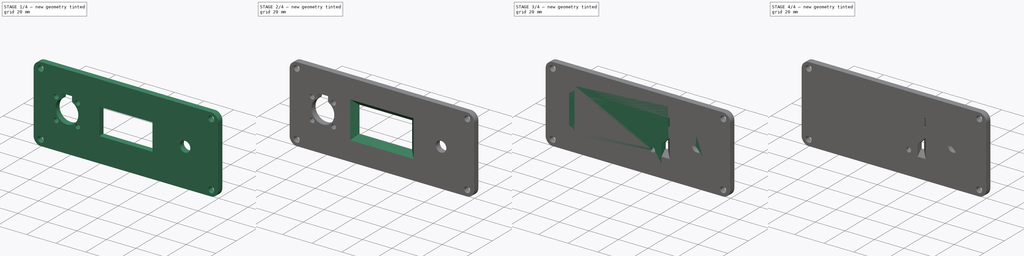
[diagram: build sequence overview — one tinted view per stage of 4, left to right]
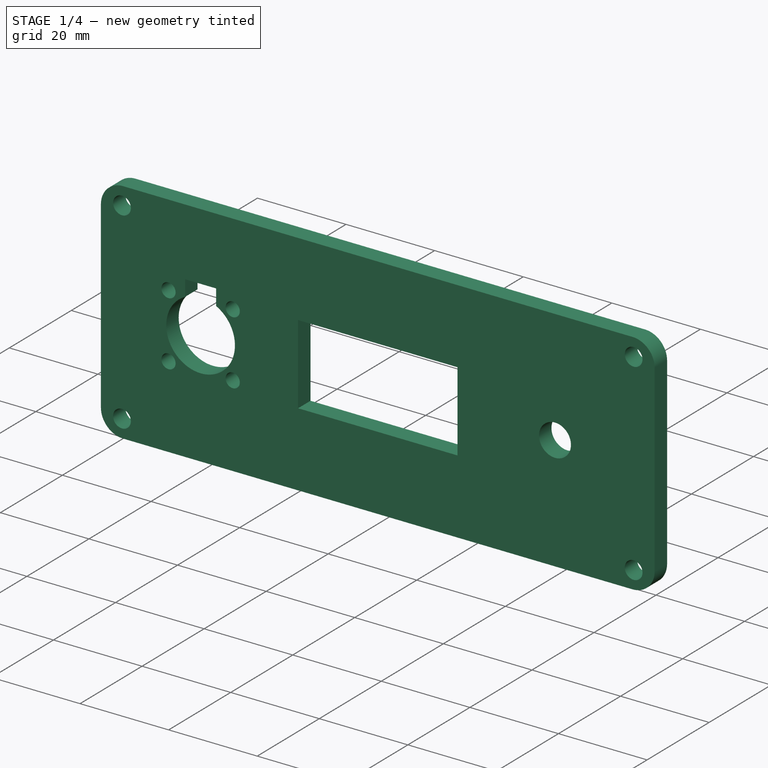
[diagram: stage 1 of 4 — iso view after this stage's code; geometry added in this stage tinted green]
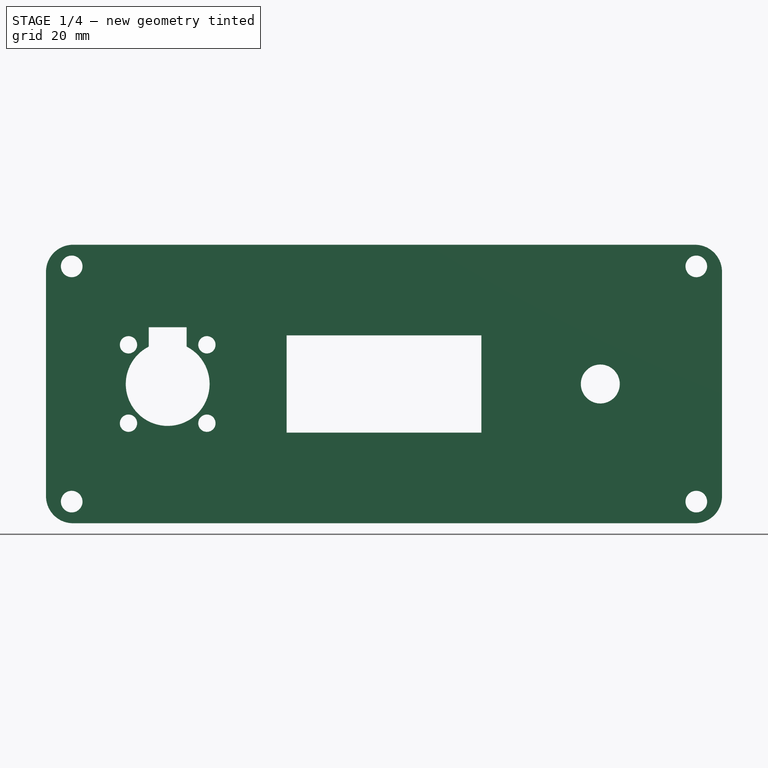
[diagram: stage 1 of 4 — front view after this stage's code; geometry added in this stage tinted green]
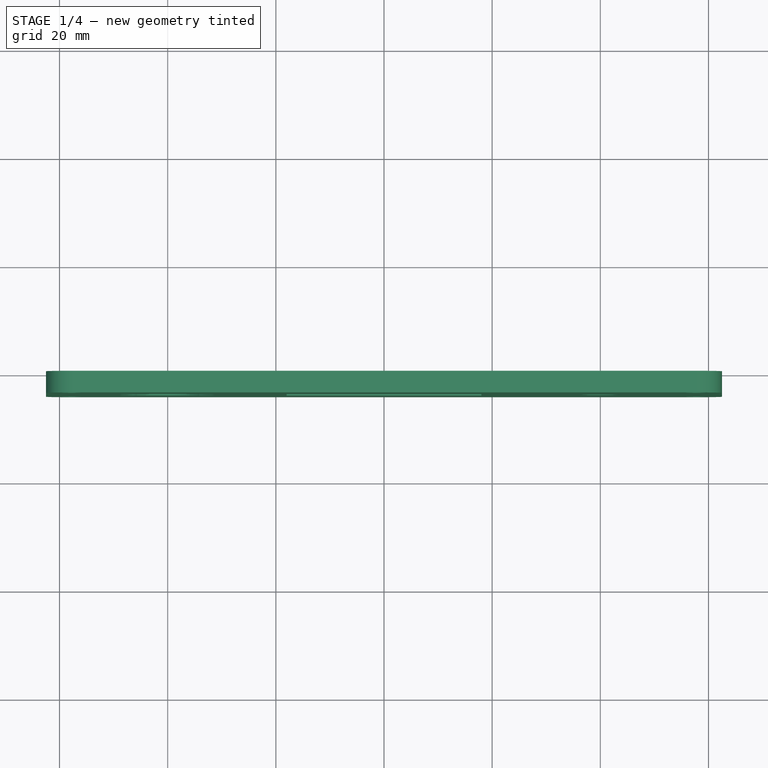
[diagram: stage 1 of 4 — top view after this stage's code; geometry added in this stage tinted green]
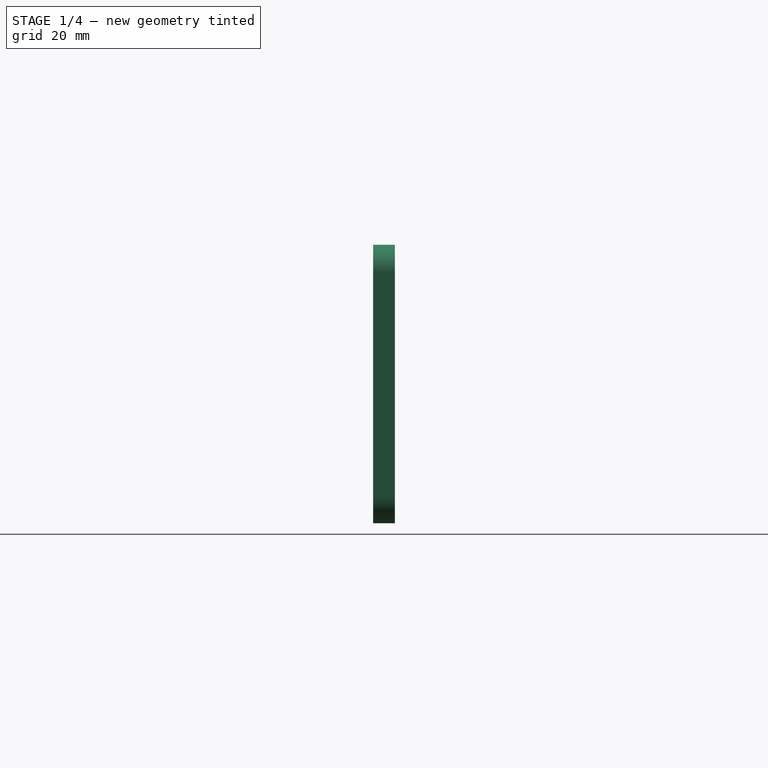
[diagram: stage 1 of 4 — right view after this stage's code; geometry added in this stage tinted green]
FCSTD DOCUMENT  (FreeCAD 0.20R28730 (Git))
Label: Panels
License: All rights reserved
LicenseURL: http://en.wikipedia.org/wiki/All_rights_reserved
objects: PartDesign::CoordinateSystem×19, Sketcher::SketchObject×7, PartDesign::Pocket×3, PartDesign::Pad×2, PartDesign::Hole×2, Part::Part2DObjectPython×2, PartDesign::Body×2, PartDesign::Chamfer×1, PartDesign::Fillet×1
note: 48 computed .brp shape members not serialized (recipe doc carries the construction recipe); baked Part::Feature solids carry a one-line shape summary decoded from their .brp

FEATURE [Sketcher::SketchObject] Sketch001  label="Master_Sketch_Front"
  FullyConstrained = true
  MapMode = 5
  Placement = pos=(0,0,0) rot=(1,0,0;1.5708rad)
  Support = -> [XZ_Plane]
  sketch-geometry (38):
    g0: ArcOfCircle CenterX=-57.5 CenterY=-20.75 CenterZ=0 NormalX=0 NormalY=0 NormalZ=1 AngleXU=0 Radius=5 StartAngle=3.14159 EndAngle=4.71239
    g1: LineSegment StartX=-62.5 StartY=-20.75 StartZ=0 EndX=-62.5 EndY=20.75 EndZ=0
    g2: ArcOfCircle CenterX=-57.5 CenterY=20.75 CenterZ=0 NormalX=0 NormalY=0 NormalZ=1 AngleXU=0 Radius=5 StartAngle=1.5708 EndAngle=3.14159
    g3: LineSegment StartX=-57.5 StartY=25.75 StartZ=0 EndX=57.5 EndY=25.75 EndZ=0
    g4: ArcOfCircle CenterX=57.5 CenterY=20.75 CenterZ=0 NormalX=0 NormalY=0 NormalZ=1 AngleXU=0 Radius=5 StartAngle=3e-16 EndAngle=1.5708
    g5: LineSegment StartX=62.5 StartY=20.75 StartZ=0 EndX=62.5 EndY=-20.75 EndZ=0
    g6: ArcOfCircle CenterX=57.5 CenterY=-20.75 CenterZ=0 NormalX=0 NormalY=0 NormalZ=1 AngleXU=0 Radius=5 StartAngle=4.71239 EndAngle=6.28319
    g7: LineSegment StartX=57.5 StartY=-25.75 StartZ=0 EndX=-57.5 EndY=-25.75 EndZ=0
    g8: GeomPoint X=-62.5 Y=-25.75 Z=0
    g9: GeomPoint X=62.5 Y=25.75 Z=0
    g10: LineSegment StartX=-18 StartY=-9 StartZ=0 EndX=-18 EndY=9 EndZ=0
    g11: LineSegment StartX=-18 StartY=9 StartZ=0 EndX=18 EndY=9 EndZ=0
    g12: LineSegment StartX=18 StartY=9 StartZ=0 EndX=18 EndY=-9 EndZ=0
    g13: LineSegment StartX=18 StartY=-9 StartZ=0 EndX=-18 EndY=-9 EndZ=0
    g14: GeomPoint X=0 Y=0 Z=0
    g15: Circle CenterX=40 CenterY=0 CenterZ=0 NormalX=0 NormalY=0 NormalZ=1 AngleXU=0 Radius=3.6
    g16: ArcOfCircle CenterX=-40 CenterY=0 CenterZ=0 NormalX=0 NormalY=0 NormalZ=1 AngleXU=0 Radius=7.75 StartAngle=2.03937 EndAngle=7.38541
    g17: LineSegment StartX=-43.5 StartY=6.91466 StartZ=0 EndX=-43.5 EndY=10.5 EndZ=0
    g18: LineSegment StartX=-43.5 StartY=10.5 StartZ=0 EndX=-36.5 EndY=10.5 EndZ=0
    g19: LineSegment StartX=-36.5 StartY=10.5 StartZ=0 EndX=-36.5 EndY=6.91466 EndZ=0
    g20: LineSegment StartX=-57.75 StartY=-21.75 StartZ=0 EndX=-57.75 EndY=21.75 EndZ=0
    g21: LineSegment StartX=-57.75 StartY=21.75 StartZ=0 EndX=57.75 EndY=21.75 EndZ=0
    g22: LineSegment StartX=57.75 StartY=21.75 StartZ=0 EndX=57.75 EndY=-21.75 EndZ=0
    g23: LineSegment StartX=57.75 StartY=-21.75 StartZ=0 EndX=-57.75 EndY=-21.75 EndZ=0
    g24: GeomPoint X=-6e-16 Y=-2.7e-15 Z=0
    g25: Circle CenterX=-57.75 CenterY=21.75 CenterZ=0 NormalX=0 NormalY=0 NormalZ=1 AngleXU=0 Radius=2
    g26: Circle CenterX=57.75 CenterY=21.75 CenterZ=0 NormalX=0 NormalY=0 NormalZ=1 AngleXU=0 Radius=2
    g27: Circle CenterX=57.75 CenterY=-21.75 CenterZ=0 NormalX=0 NormalY=0 NormalZ=1 AngleXU=0 Radius=2
    g28: Circle CenterX=-57.75 CenterY=-21.75 CenterZ=0 NormalX=0 NormalY=0 NormalZ=1 AngleXU=0 Radius=2
    g29: LineSegment StartX=-47.25 StartY=-7.25 StartZ=0 EndX=-47.25 EndY=7.25 EndZ=0
    g30: LineSegment StartX=-47.25 StartY=7.25 StartZ=0 EndX=-32.75 EndY=7.25 EndZ=0
    g31: LineSegment StartX=-32.75 StartY=7.25 StartZ=0 EndX=-32.75 EndY=-7.25 EndZ=0
    g32: LineSegment StartX=-32.75 StartY=-7.25 StartZ=0 EndX=-47.25 EndY=-7.25 EndZ=0
    g33: GeomPoint X=-40 Y=0 Z=0
    g34: Circle CenterX=-47.25 CenterY=7.25 CenterZ=0 NormalX=0 NormalY=0 NormalZ=1 AngleXU=0 Radius=1.25
    g35: Circle CenterX=-32.75 CenterY=7.25 CenterZ=0 NormalX=0 NormalY=0 NormalZ=1 AngleXU=0 Radius=1.25
    g36: Circle CenterX=-47.25 CenterY=-7.25 CenterZ=0 NormalX=0 NormalY=0 NormalZ=1 AngleXU=0 Radius=1.25
    g37: Circle CenterX=-32.75 CenterY=-7.25 CenterZ=0 NormalX=0 NormalY=0 NormalZ=1 AngleXU=0 Radius=1.25
  constraints (90):
    c: Tangent(g0,g1) = 1.5708
    c: Tangent(g1,g2) = 1.5708
    c: Tangent(g2,g3) = 1.5708
    c: Tangent(g3,g4) = 1.5708
    c: Tangent(g4,g5) = 1.5708
    c: Tangent(g5,g6) = 1.5708
    c: Tangent(g6,g7) = 1.5708
    c: Tangent(g7,g0) = 1.5708
    c: Horizontal(g3)
    c: Horizontal(g7)
    c: Vertical(g1)
    c: Vertical(g5)
    c: Equal(g0,g2)
    c: Equal(g2,g4)
    c: Equal(g4,g6)
    c: PointOnObject(g8,g1)
    c: PointOnObject(g8,g7)
    c: PointOnObject(g9,g3)
    c: PointOnObject(g9,g5)
    c: Symmetric(g0,g4,g-1)
    c: Distance(g0,g5) = 125
    c: Distance(g0,g2) = 51.5
    c: Radius(g2) = 5
    c: Coincident(g10,g11)
    c: Coincident(g11,g12)
    c: Coincident(g12,g13)
    c: Coincident(g13,g10)
    c: Horizontal(g11)
    c: Horizontal(g13)
    c: Vertical(g10)
    c: Vertical(g12)
    c: Symmetric(g11,g10,g14)
    c: Coincident(g14,g-1)
    c: Distance(g11) = 36
    c: Distance(g10) = 18
    c: PointOnObject(g15,g-1)
    c: Coincident(g17,g18)
    c: Coincident(g18,g19)
    c: Coincident(g19,g16)
    c: Horizontal(g18)
    c: Vertical(g19)
    c: Vertical(g17)
    c: Horizontal(g17,g16)
    c: Coincident(g17,g16)
    c: Coincident(g20,g21)
    c: Coincident(g21,g22)
    c: Coincident(g22,g23)
    c: Coincident(g23,g20)
    c: Horizontal(g21)
    c: Horizontal(g23)
    c: Vertical(g20)
    c: Vertical(g22)
    c: Symmetric(g21,g20,g24)
    c: Coincident(g24,g-1)
    c: Coincident(g25,g20)
    c: Coincident(g26,g21)
    c: Coincident(g27,g22)
    c: Coincident(g28,g20)
    c: Equal(g28,g25)
    c: Equal(g25,g26)
    c: Equal(g26,g27)
    c: Diameter(g25) = 4
    c: Distance(g21) = 115.5
    c: Distance(g20) = 43.5
    c: Radius(g16) = 7.75
    c: DistanceY(g16,g17) = 10.5
    c: DistanceX(g18,g18) = 7
    c: Symmetric(g16,g15,g-2)
    c: Distance(g16,g15) = 80
    c: Diameter(g15) = 7.2
    c: Coincident(g29,g30)
    c: Coincident(g30,g31)
    c: Coincident(g31,g32)
    c: Coincident(g32,g29)
    c: Horizontal(g30)
    c: Horizontal(g32)
    c: Vertical(g29)
    c: Vertical(g31)
    c: Symmetric(g30,g29,g33)
    c: Coincident(g33,g16)
    c: Equal(g30,g31)
    c: Distance(g30) = 14.5
    c: Coincident(g34,g29)
    c: Coincident(g35,g30)
    c: Coincident(g36,g29)
    c: Coincident(g37,g31)
    c: Equal(g37,g36)
    c: Equal(g36,g35)
    c: Equal(g35,g34)
    c: Diameter(g34) = 2.5
FEATURE [Sketcher::SketchObject] Sketch
  FullyConstrained = true
  MapMode = 5
  Placement = pos=(0,0,0) rot=(1,0,0;1.5708rad)
  Support = -> [XZ_Plane]
  expr: Constraints[20] = Sketch001.Constraints[20]
  expr: Constraints[21] = Sketch001.Constraints[21]
  expr: Constraints[22] = Sketch001.Constraints[22]
  expr: Constraints[33] = Sketch001.Constraints[33]
  expr: Constraints[34] = Sketch001.Constraints[34]
  expr: Constraints[61] = Sketch001.Constraints[61]
  expr: Constraints[62] = Sketch001.Constraints[62]
  expr: Constraints[63] = Sketch001.Constraints[63]
  expr: Constraints[64] = Sketch001.Constraints[64]
  expr: Constraints[65] = Sketch001.Constraints[65]
  expr: Constraints[66] = Sketch001.Constraints[66]
  expr: Constraints[68] = Sketch001.Constraints[68]
  expr: Constraints[69] = Sketch001.Constraints[69]
  expr: Constraints[81] = Sketch001.Constraints[81]
  expr: Constraints[89] = Sketch001.Constraints[89]
  sketch-geometry (38):
    g0: ArcOfCircle CenterX=-57.5 CenterY=-20.75 CenterZ=0 NormalX=0 NormalY=0 NormalZ=1 AngleXU=0 Radius=5 StartAngle=3.14159 EndAngle=4.71239
    g1: LineSegment StartX=-62.5 StartY=-20.75 StartZ=0 EndX=-62.5 EndY=20.75 EndZ=0
    g2: ArcOfCircle CenterX=-57.5 CenterY=20.75 CenterZ=0 NormalX=0 NormalY=0 NormalZ=1 AngleXU=0 Radius=5 StartAngle=1.5708 EndAngle=3.14159
    g3: LineSegment StartX=-57.5 StartY=25.75 StartZ=0 EndX=57.5 EndY=25.75 EndZ=0
    g4: ArcOfCircle CenterX=57.5 CenterY=20.75 CenterZ=0 NormalX=0 NormalY=0 NormalZ=1 AngleXU=0 Radius=5 StartAngle=1e-16 EndAngle=1.5708
    g5: LineSegment StartX=62.5 StartY=20.75 StartZ=0 EndX=62.5 EndY=-20.75 EndZ=0
    g6: ArcOfCircle CenterX=57.5 CenterY=-20.75 CenterZ=0 NormalX=0 NormalY=0 NormalZ=1 AngleXU=0 Radius=5 StartAngle=4.71239 EndAngle=6.28319
    g7: LineSegment StartX=57.5 StartY=-25.75 StartZ=0 EndX=-57.5 EndY=-25.75 EndZ=0
    g8: GeomPoint X=-62.5 Y=-25.75 Z=0
    g9: GeomPoint X=62.5 Y=25.75 Z=0
    g10: LineSegment StartX=-18 StartY=-9 StartZ=0 EndX=-18 EndY=9 EndZ=0
    g11: LineSegment StartX=-18 StartY=9 StartZ=0 EndX=18 EndY=9 EndZ=0
    g12: LineSegment StartX=18 StartY=9 StartZ=0 EndX=18 EndY=-9 EndZ=0
    g13: LineSegment StartX=18 StartY=-9 StartZ=0 EndX=-18 EndY=-9 EndZ=0
    g14: GeomPoint X=0 Y=0 Z=0
    g15: Circle CenterX=40 CenterY=0 CenterZ=0 NormalX=0 NormalY=0 NormalZ=1 AngleXU=0 Radius=3.6
    g16: ArcOfCircle CenterX=-40 CenterY=0 CenterZ=0 NormalX=0 NormalY=0 NormalZ=1 AngleXU=0 Radius=7.75 StartAngle=2.03937 EndAngle=7.38541
    g17: LineSegment StartX=-43.5 StartY=6.91466 StartZ=0 EndX=-43.5 EndY=10.5 EndZ=0
    g18: LineSegment StartX=-43.5 StartY=10.5 StartZ=0 EndX=-36.5 EndY=10.5 EndZ=0
    g19: LineSegment StartX=-36.5 StartY=10.5 StartZ=0 EndX=-36.5 EndY=6.91466 EndZ=0
    g20: LineSegment StartX=-57.75 StartY=-21.75 StartZ=0 EndX=-57.75 EndY=21.75 EndZ=0
    g21: LineSegment StartX=-57.75 StartY=21.75 StartZ=0 EndX=57.75 EndY=21.75 EndZ=0
    g22: LineSegment StartX=57.75 StartY=21.75 StartZ=0 EndX=57.75 EndY=-21.75 EndZ=0
    g23: LineSegment StartX=57.75 StartY=-21.75 StartZ=0 EndX=-57.75 EndY=-21.75 EndZ=0
    g24: GeomPoint X=-6e-16 Y=-2.7e-15 Z=0
    g25: Circle CenterX=-57.75 CenterY=21.75 CenterZ=0 NormalX=0 NormalY=0 NormalZ=1 AngleXU=0 Radius=2
    g26: Circle CenterX=57.75 CenterY=21.75 CenterZ=0 NormalX=0 NormalY=0 NormalZ=1 AngleXU=0 Radius=2
    g27: Circle CenterX=57.75 CenterY=-21.75 CenterZ=0 NormalX=0 NormalY=0 NormalZ=1 AngleXU=0 Radius=2
    g28: Circle CenterX=-57.75 CenterY=-21.75 CenterZ=0 NormalX=0 NormalY=0 NormalZ=1 AngleXU=0 Radius=2
    g29: LineSegment StartX=-47.25 StartY=-7.25 StartZ=0 EndX=-47.25 EndY=7.25 EndZ=0
    g30: LineSegment StartX=-47.25 StartY=7.25 StartZ=0 EndX=-32.75 EndY=7.25 EndZ=0
    g31: LineSegment StartX=-32.75 StartY=7.25 StartZ=0 EndX=-32.75 EndY=-7.25 EndZ=0
    g32: LineSegment StartX=-32.75 StartY=-7.25 StartZ=0 EndX=-47.25 EndY=-7.25 EndZ=0
    g33: GeomPoint X=-40 Y=0 Z=0
    g34: Circle CenterX=-47.25 CenterY=7.25 CenterZ=0 NormalX=0 NormalY=0 NormalZ=1 AngleXU=0 Radius=1.25
    g35: Circle CenterX=-32.75 CenterY=7.25 CenterZ=0 NormalX=0 NormalY=0 NormalZ=1 AngleXU=0 Radius=1.25
    g36: Circle CenterX=-47.25 CenterY=-7.25 CenterZ=0 NormalX=0 NormalY=0 NormalZ=1 AngleXU=0 Radius=1.25
    g37: Circle CenterX=-32.75 CenterY=-7.25 CenterZ=0 NormalX=0 NormalY=0 NormalZ=1 AngleXU=0 Radius=1.25
  constraints (90):
    c: Tangent(g0,g1) = 1.5708
    c: Tangent(g1,g2) = 1.5708
    c: Tangent(g2,g3) = 1.5708
    c: Tangent(g3,g4) = 1.5708
    c: Tangent(g4,g5) = 1.5708
    c: Tangent(g5,g6) = 1.5708
    c: Tangent(g6,g7) = 1.5708
    c: Tangent(g7,g0) = 1.5708
    c: Horizontal(g3)
    c: Horizontal(g7)
    c: Vertical(g1)
    c: Vertical(g5)
    c: Equal(g0,g2)
    c: Equal(g2,g4)
    c: Equal(g4,g6)
    c: PointOnObject(g8,g1)
    c: PointOnObject(g8,g7)
    c: PointOnObject(g9,g3)
    c: PointOnObject(g9,g5)
    c: Symmetric(g0,g4,g-1)
    c: Distance(g0,g5) = 125
    c: Distance(g0,g2) = 51.5
    c: Radius(g2) = 5
    c: Coincident(g10,g11)
    c: Coincident(g11,g12)
    c: Coincident(g12,g13)
    c: Coincident(g13,g10)
    c: Horizontal(g11)
    c: Horizontal(g13)
    c: Vertical(g10)
    c: Vertical(g12)
    c: Symmetric(g11,g10,g14)
    c: Coincident(g14,g-1)
    c: Distance(g11) = 36
    c: Distance(g10) = 18
    c: PointOnObject(g15,g-1)
    c: Coincident(g17,g18)
    c: Coincident(g18,g19)
    c: Coincident(g19,g16)
    c: Horizontal(g18)
    c: Vertical(g19)
    c: Vertical(g17)
    c: Horizontal(g17,g16)
    c: Coincident(g17,g16)
    c: Coincident(g20,g21)
    c: Coincident(g21,g22)
    c: Coincident(g22,g23)
    c: Coincident(g23,g20)
    c: Horizontal(g21)
    c: Horizontal(g23)
    c: Vertical(g20)
    c: Vertical(g22)
    c: Symmetric(g21,g20,g24)
    c: Coincident(g24,g-1)
    c: Coincident(g25,g20)
    c: Coincident(g26,g21)
    c: Coincident(g27,g22)
    c: Coincident(g28,g20)
    c: Equal(g28,g25)
    c: Equal(g25,g26)
    c: Equal(g26,g27)
    c: Diameter(g25) = 4
    c: Distance(g21) = 115.5
    c: Distance(g20) = 43.5
    c: Radius(g16) = 7.75
    c: DistanceY(g16,g17) = 10.5
    c: DistanceX(g18,g18) = 7
    c: Symmetric(g16,g15,g-2)
    c: Distance(g16,g15) = 80
    c: Diameter(g15) = 7.2
    c: Coincident(g29,g30)
    c: Coincident(g30,g31)
    c: Coincident(g31,g32)
    c: Coincident(g32,g29)
    c: Horizontal(g30)
    c: Horizontal(g32)
    c: Vertical(g29)
    c: Vertical(g31)
    c: Symmetric(g30,g29,g33)
    c: Coincident(g33,g16)
    c: Equal(g30,g31)
    c: Distance(g30) = 14.5
    c: Coincident(g34,g29)
    c: Coincident(g35,g30)
    c: Coincident(g36,g29)
    c: Coincident(g37,g31)
    c: Equal(g37,g36)
    c: Equal(g36,g35)
    c: Equal(g35,g34)
    c: Diameter(g34) = 2.5
FEATURE [PartDesign::Pad] Pad
  Direction = (0,-1,-2e-16)
  Length = 4
  Length2 = 10
  Placement = pos=(0,0,0) rot=(1,0,0;1.5708rad)
  Profile = -> Sketch
  ReferenceAxis = -> Sketch [N_Axis]
  Refine = true
  Type = 0
FEATURE [Sketcher::SketchObject] Sketch002
  AttachmentOffset = pos=(0,0,4) rot=(0,0,1;0rad)
  FullyConstrained = true
  MapMode = 5
  Placement = pos=(0,-4,-9e-16) rot=(1,0,0;1.5708rad)
  Support = -> [XZ_Plane]
  expr: Constraints[20] = Sketch001.Constraints[20]
  expr: Constraints[21] = Sketch001.Constraints[21]
  expr: Constraints[22] = Sketch001.Constraints[22]
  expr: Constraints[33] = Sketch001.Constraints[33]
  expr: Constraints[34] = Sketch001.Constraints[34]
  expr: Constraints[61] = Sketch001.Constraints[61]
  expr: Constraints[62] = Sketch001.Constraints[62]
  expr: Constraints[63] = Sketch001.Constraints[63]
  expr: Constraints[64] = Sketch001.Constraints[64]
  expr: Constraints[65] = Sketch001.Constraints[65]
  expr: Constraints[66] = Sketch001.Constraints[66]
  expr: Constraints[68] = Sketch001.Constraints[68]
  expr: Constraints[69] = Sketch001.Constraints[69]
  expr: Constraints[81] = Sketch001.Constraints[81]
  expr: Constraints[89] = Sketch001.Constraints[89]
  sketch-geometry (38):
    g0: ArcOfCircle CenterX=-57.5 CenterY=-20.75 CenterZ=0 NormalX=0 NormalY=0 NormalZ=1 AngleXU=0 Radius=5 StartAngle=3.14159 EndAngle=4.71239
    g1: LineSegment StartX=-62.5 StartY=-20.75 StartZ=0 EndX=-62.5 EndY=20.75 EndZ=0
    g2: ArcOfCircle CenterX=-57.5 CenterY=20.75 CenterZ=0 NormalX=0 NormalY=0 NormalZ=1 AngleXU=0 Radius=5 StartAngle=1.5708 EndAngle=3.14159
    g3: LineSegment StartX=-57.5 StartY=25.75 StartZ=0 EndX=57.5 EndY=25.75 EndZ=0
    g4: ArcOfCircle CenterX=57.5 CenterY=20.75 CenterZ=0 NormalX=0 NormalY=0 NormalZ=1 AngleXU=0 Radius=5 StartAngle=0 EndAngle=1.5708
    g5: LineSegment StartX=62.5 StartY=20.75 StartZ=0 EndX=62.5 EndY=-20.75 EndZ=0
    g6: ArcOfCircle CenterX=57.5 CenterY=-20.75 CenterZ=0 NormalX=0 NormalY=0 NormalZ=1 AngleXU=0 Radius=5 StartAngle=4.71239 EndAngle=6.28319
    g7: LineSegment StartX=57.5 StartY=-25.75 StartZ=0 EndX=-57.5 EndY=-25.75 EndZ=0
    g8: GeomPoint X=-62.5 Y=-25.75 Z=0
    g9: GeomPoint X=62.5 Y=25.75 Z=0
    g10: LineSegment StartX=-18 StartY=-9 StartZ=0 EndX=-18 EndY=9 EndZ=0
    g11: LineSegment StartX=-18 StartY=9 StartZ=0 EndX=18 EndY=9 EndZ=0
    g12: LineSegment StartX=18 StartY=9 StartZ=0 EndX=18 EndY=-9 EndZ=0
    g13: LineSegment StartX=18 StartY=-9 StartZ=0 EndX=-18 EndY=-9 EndZ=0
    g14: GeomPoint X=0 Y=0 Z=0
    g15: Circle CenterX=40 CenterY=0 CenterZ=0 NormalX=0 NormalY=0 NormalZ=1 AngleXU=0 Radius=3.6
    g16: ArcOfCircle CenterX=-40 CenterY=0 CenterZ=0 NormalX=0 NormalY=0 NormalZ=1 AngleXU=0 Radius=7.75 StartAngle=2.03937 EndAngle=7.38541
    g17: LineSegment StartX=-43.5 StartY=6.91466 StartZ=0 EndX=-43.5 EndY=10.5 EndZ=0
    g18: LineSegment StartX=-43.5 StartY=10.5 StartZ=0 EndX=-36.5 EndY=10.5 EndZ=0
    g19: LineSegment StartX=-36.5 StartY=10.5 StartZ=0 EndX=-36.5 EndY=6.91466 EndZ=0
    g20: LineSegment StartX=-57.75 StartY=-21.75 StartZ=0 EndX=-57.75 EndY=21.75 EndZ=0
    g21: LineSegment StartX=-57.75 StartY=21.75 StartZ=0 EndX=57.75 EndY=21.75 EndZ=0
    g22: LineSegment StartX=57.75 StartY=21.75 StartZ=0 EndX=57.75 EndY=-21.75 EndZ=0
    g23: LineSegment StartX=57.75 StartY=-21.75 StartZ=0 EndX=-57.75 EndY=-21.75 EndZ=0
    g24: GeomPoint X=-6e-16 Y=-2.7e-15 Z=0
    g25: Circle CenterX=-57.75 CenterY=21.75 CenterZ=0 NormalX=0 NormalY=0 NormalZ=1 AngleXU=0 Radius=2
    g26: Circle CenterX=57.75 CenterY=21.75 CenterZ=0 NormalX=0 NormalY=0 NormalZ=1 AngleXU=0 Radius=2
    g27: Circle CenterX=57.75 CenterY=-21.75 CenterZ=0 NormalX=0 NormalY=0 NormalZ=1 AngleXU=0 Radius=2
    g28: Circle CenterX=-57.75 CenterY=-21.75 CenterZ=0 NormalX=0 NormalY=0 NormalZ=1 AngleXU=0 Radius=2
    g29: LineSegment StartX=-47.25 StartY=-7.25 StartZ=0 EndX=-47.25 EndY=7.25 EndZ=0
    g30: LineSegment StartX=-47.25 StartY=7.25 StartZ=0 EndX=-32.75 EndY=7.25 EndZ=0
    g31: LineSegment StartX=-32.75 StartY=7.25 StartZ=0 EndX=-32.75 EndY=-7.25 EndZ=0
    g32: LineSegment StartX=-32.75 StartY=-7.25 StartZ=0 EndX=-47.25 EndY=-7.25 EndZ=0
    g33: GeomPoint X=-40 Y=0 Z=0
    g34: Circle CenterX=-47.25 CenterY=7.25 CenterZ=0 NormalX=0 NormalY=0 NormalZ=1 AngleXU=0 Radius=1.25
    g35: Circle CenterX=-32.75 CenterY=7.25 CenterZ=0 NormalX=0 NormalY=0 NormalZ=1 AngleXU=0 Radius=1.25
    g36: Circle CenterX=-47.25 CenterY=-7.25 CenterZ=0 NormalX=0 NormalY=0 NormalZ=1 AngleXU=0 Radius=1.25
    g37: Circle CenterX=-32.75 CenterY=-7.25 CenterZ=0 NormalX=0 NormalY=0 NormalZ=1 AngleXU=0 Radius=1.25
  constraints (90):
    c: Tangent(g0,g1) = 1.5708
    c: Tangent(g1,g2) = 1.5708
    c: Tangent(g2,g3) = 1.5708
    c: Tangent(g3,g4) = 1.5708
    c: Tangent(g4,g5) = 1.5708
    c: Tangent(g5,g6) = 1.5708
    c: Tangent(g6,g7) = 1.5708
    c: Tangent(g7,g0) = 1.5708
    c: Horizontal(g3)
    c: Horizontal(g7)
    c: Vertical(g1)
    c: Vertical(g5)
    c: Equal(g0,g2)
    c: Equal(g2,g4)
    c: Equal(g4,g6)
    c: PointOnObject(g8,g1)
    c: PointOnObject(g8,g7)
    c: PointOnObject(g9,g3)
    c: PointOnObject(g9,g5)
    c: Symmetric(g0,g4,g-1)
    c: Distance(g0,g5) = 125
    c: Distance(g0,g2) = 51.5
    c: Radius(g2) = 5
    c: Coincident(g10,g11)
    c: Coincident(g11,g12)
    c: Coincident(g12,g13)
    c: Coincident(g13,g10)
    c: Horizontal(g11)
    c: Horizontal(g13)
    c: Vertical(g10)
    c: Vertical(g12)
    c: Symmetric(g11,g10,g14)
    c: Coincident(g14,g-1)
    c: Distance(g11) = 36
    c: Distance(g10) = 18
    c: PointOnObject(g15,g-1)
    c: Coincident(g17,g18)
    c: Coincident(g18,g19)
    c: Coincident(g19,g16)
    c: Horizontal(g18)
    c: Vertical(g19)
    c: Vertical(g17)
    c: Horizontal(g17,g16)
    c: Coincident(g17,g16)
    c: Coincident(g20,g21)
    c: Coincident(g21,g22)
    c: Coincident(g22,g23)
    c: Coincident(g23,g20)
    c: Horizontal(g21)
    c: Horizontal(g23)
    c: Vertical(g20)
    c: Vertical(g22)
    c: Symmetric(g21,g20,g24)
    c: Coincident(g24,g-1)
    c: Coincident(g25,g20)
    c: Coincident(g26,g21)
    c: Coincident(g27,g22)
    c: Coincident(g28,g20)
    c: Equal(g28,g25)
    c: Equal(g25,g26)
    c: Equal(g26,g27)
    c: Diameter(g25) = 4
    c: Distance(g21) = 115.5
    c: Distance(g20) = 43.5
    c: Radius(g16) = 7.75
    c: DistanceY(g16,g17) = 10.5
    c: DistanceX(g18,g18) = 7
    c: Symmetric(g16,g15,g-2)
    c: Distance(g16,g15) = 80
    c: Diameter(g15) = 7.2
    c: Coincident(g29,g30)
    c: Coincident(g30,g31)
    c: Coincident(g31,g32)
    c: Coincident(g32,g29)
    c: Horizontal(g30)
    c: Horizontal(g32)
    c: Vertical(g29)
    c: Vertical(g31)
    c: Symmetric(g30,g29,g33)
    c: Coincident(g33,g16)
    c: Equal(g30,g31)
    c: Distance(g30) = 14.5
    c: Coincident(g34,g29)
    c: Coincident(g35,g30)
    c: Coincident(g36,g29)
    c: Coincident(g37,g31)
    c: Equal(g37,g36)
    c: Equal(g36,g35)
    c: Equal(g35,g34)
    c: Diameter(g34) = 2.5
FEATURE [PartDesign::Hole] Hole
  BaseFeature = -> Pad
  CustomThreadClearance = 0
  Depth = 25
  DepthType = 0
  Diameter = 3.2
  DrillForDepth = false
  DrillPoint = 1
  DrillPointAngle = 118
  HoleCutCountersinkAngle = 90
  HoleCutCustomValues = false
  HoleCutDepth = 0
  HoleCutDiameter = 4.64
  HoleCutType = 0
  ModelThread = false
  Placement = pos=(0,0,0) rot=(1,0,0;1.5708rad)
  Profile = -> Sketch002
  Refine = true
  Tapered = false
  TaperedAngle = 90
  ThreadClass = 0
  ThreadDepth = 25
  ThreadDepthType = 0
  ThreadDirection = 0
  ThreadFit = 1
  ThreadSize = 9
  ThreadType = 1
  Threaded = false
  UseCustomThreadClearance = false
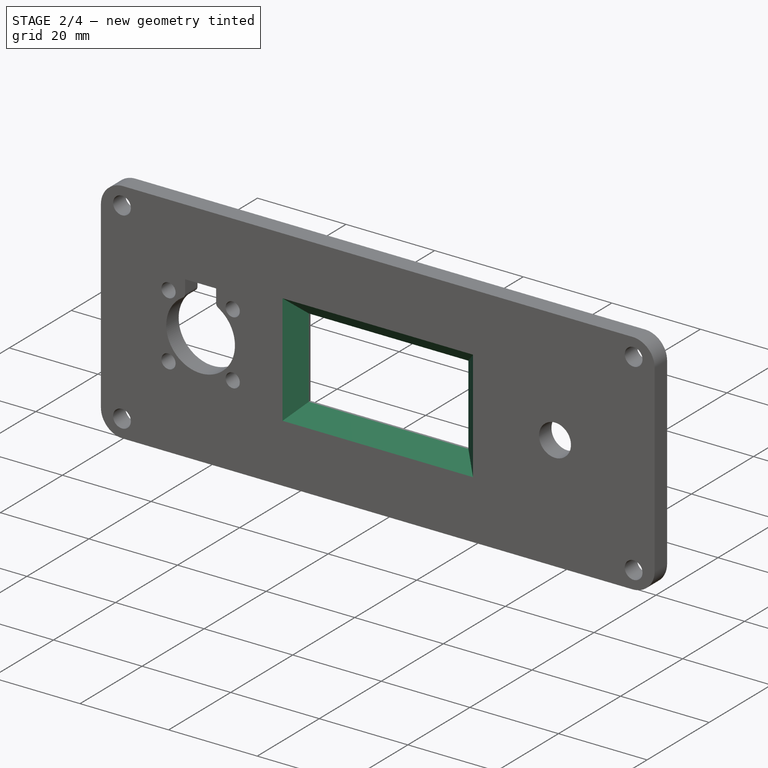
[diagram: stage 2 of 4 — iso view after this stage's code; geometry added in this stage tinted green]
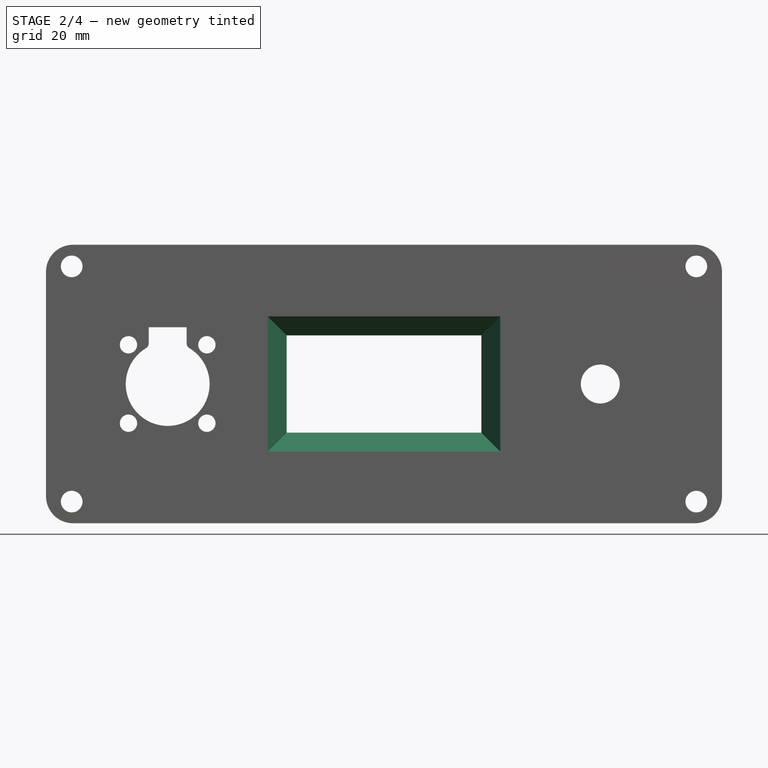
[diagram: stage 2 of 4 — front view after this stage's code; geometry added in this stage tinted green]
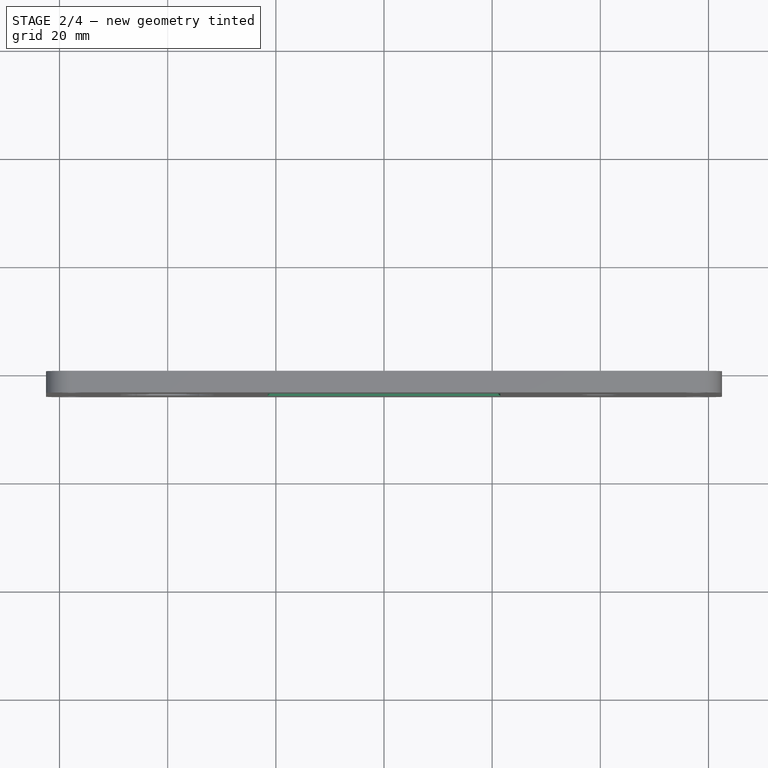
[diagram: stage 2 of 4 — top view after this stage's code; geometry added in this stage tinted green]
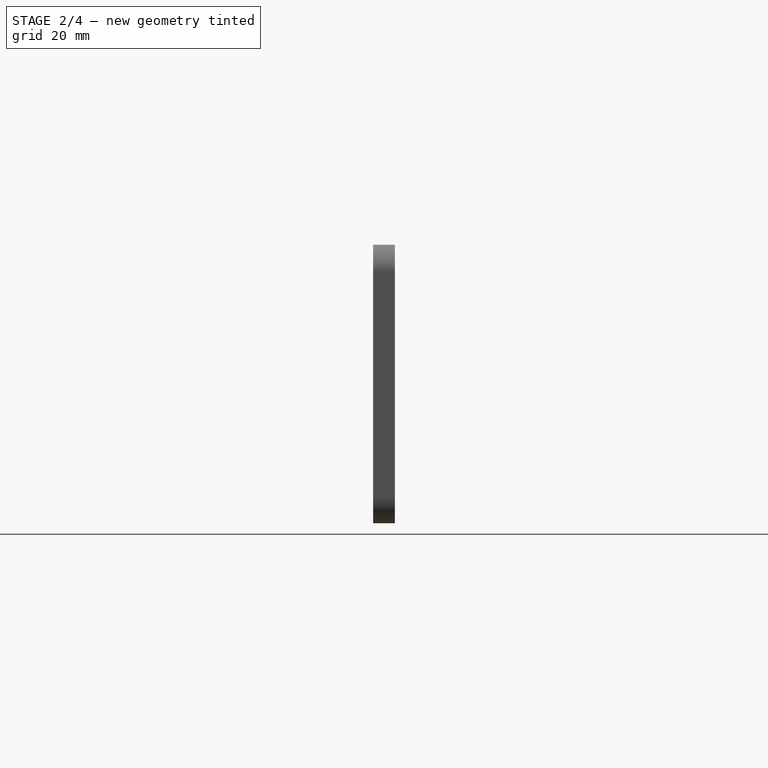
[diagram: stage 2 of 4 — right view after this stage's code; geometry added in this stage tinted green]
FEATURE [PartDesign::Chamfer] Chamfer
  Angle = 45
  Base = -> Hole [Edge41,Edge43,Edge44,Edge42]
  BaseFeature = -> Hole
  ChamferType = 0
  FlipDirection = false
  Placement = pos=(0,0,0) rot=(1,0,0;1.5708rad)
  Refine = true
  Size = 3.5
  Size2 = 1
  SupportTransform = false
  UseAllEdges = false
FEATURE [PartDesign::Fillet] Fillet
  Base = -> Chamfer [Edge59,Edge58]
  BaseFeature = -> Chamfer
  Placement = pos=(0,0,0) rot=(1,0,0;1.5708rad)
  Radius = 1
  Refine = true
  SupportTransform = false
  UseAllEdges = false
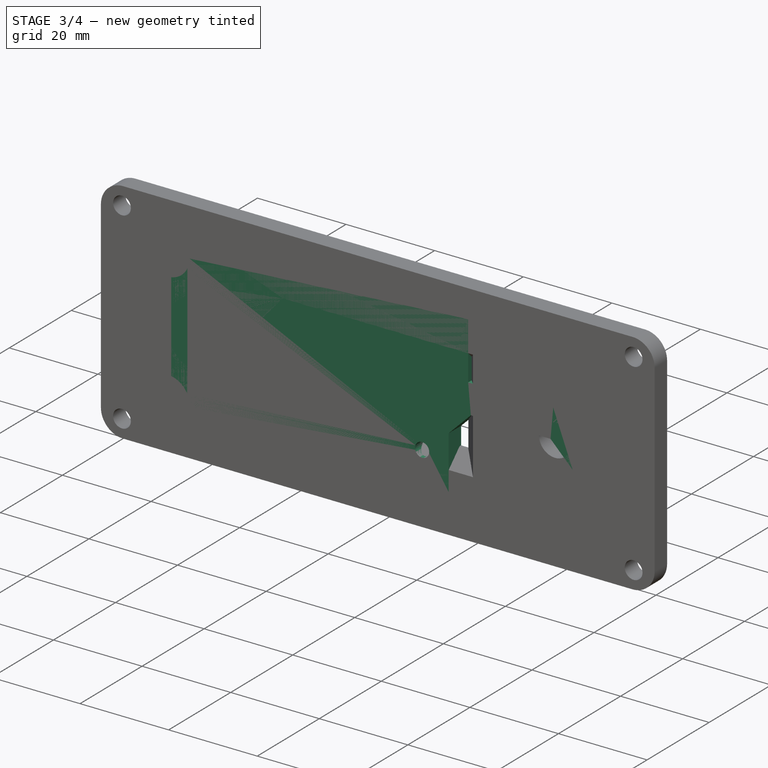
[diagram: stage 3 of 4 — iso view after this stage's code; geometry added in this stage tinted green]
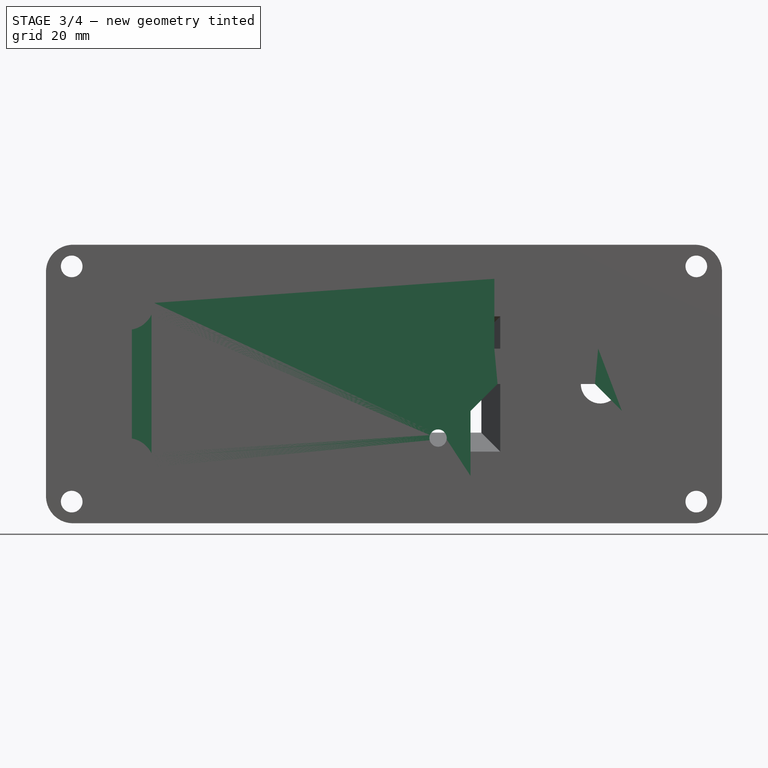
[diagram: stage 3 of 4 — front view after this stage's code; geometry added in this stage tinted green]
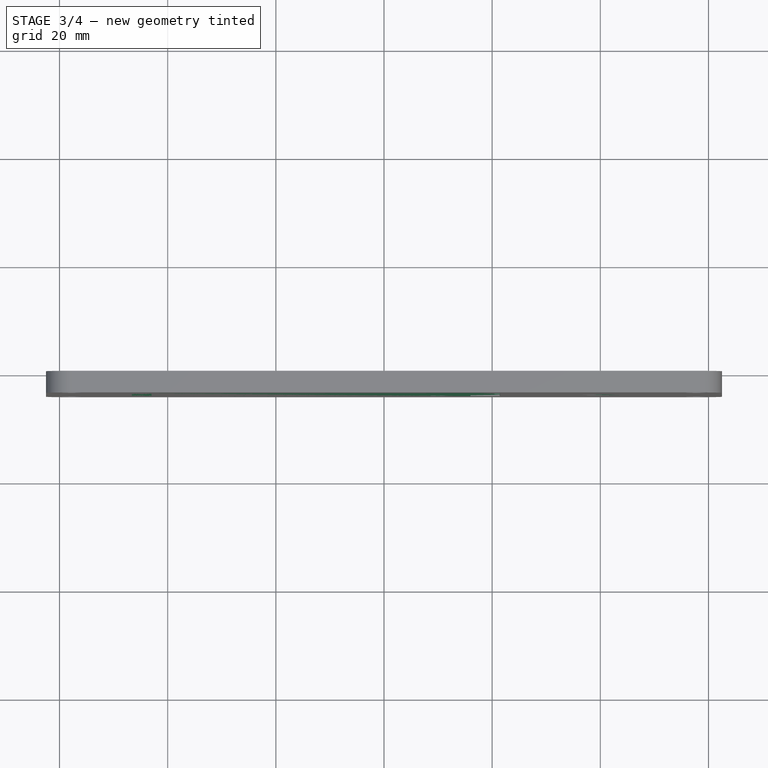
[diagram: stage 3 of 4 — top view after this stage's code; geometry added in this stage tinted green]
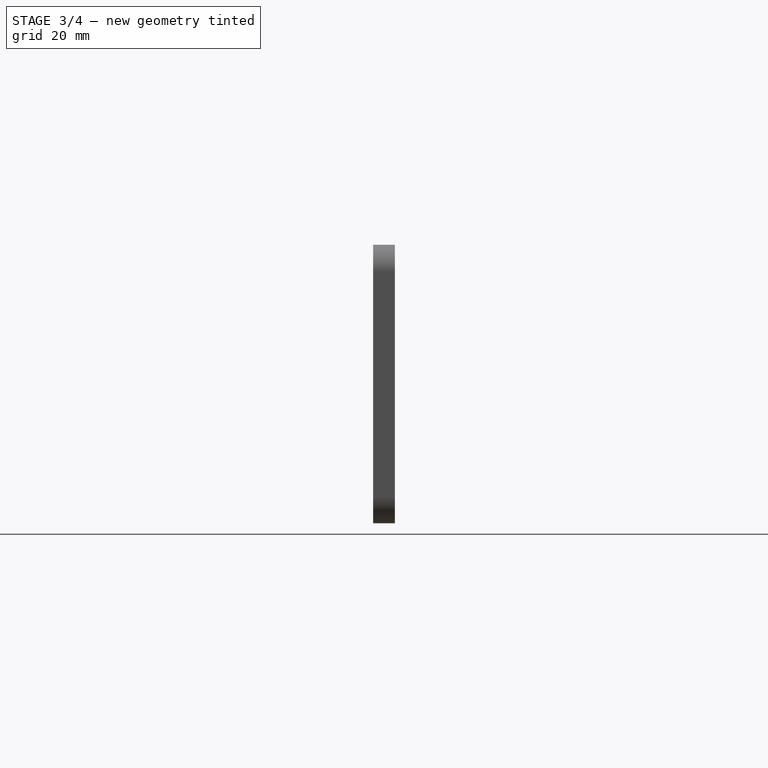
[diagram: stage 3 of 4 — right view after this stage's code; geometry added in this stage tinted green]
FEATURE [Sketcher::SketchObject] Sketch003  label="Sketch_Pad"
  FullyConstrained = true
  MapMode = 5
  Placement = pos=(0,0,0) rot=(1,0,0;1.5708rad)
  Support = -> [XZ_Plane001]
  expr: Constraints[20] = Sketch001.Constraints[20]
  expr: Constraints[21] = Sketch001.Constraints[21]
  expr: Constraints[22] = Sketch001.Constraints[22]
  expr: Constraints[38] = Sketch001.Constraints[61]
  expr: Constraints[39] = Sketch001.Constraints[62]
  expr: Constraints[40] = Sketch001.Constraints[63]
  sketch-geometry (36):
    g0: ArcOfCircle CenterX=-57.5 CenterY=-20.75 CenterZ=0 NormalX=0 NormalY=0 NormalZ=1 AngleXU=0 Radius=5 StartAngle=3.14159 EndAngle=4.71239
    g1: LineSegment StartX=-62.5 StartY=-20.75 StartZ=0 EndX=-62.5 EndY=20.75 EndZ=0
    g2: ArcOfCircle CenterX=-57.5 CenterY=20.75 CenterZ=0 NormalX=0 NormalY=0 NormalZ=1 AngleXU=0 Radius=5 StartAngle=1.5708 EndAngle=3.14159
    g3: LineSegment StartX=-57.5 StartY=25.75 StartZ=0 EndX=57.5 EndY=25.75 EndZ=0
    g4: ArcOfCircle CenterX=57.5 CenterY=20.75 CenterZ=0 NormalX=0 NormalY=0 NormalZ=1 AngleXU=0 Radius=5 StartAngle=4e-16 EndAngle=1.5708
    g5: LineSegment StartX=62.5 StartY=20.75 StartZ=0 EndX=62.5 EndY=-20.75 EndZ=0
    g6: ArcOfCircle CenterX=57.5 CenterY=-20.75 CenterZ=0 NormalX=0 NormalY=0 NormalZ=1 AngleXU=0 Radius=5 StartAngle=4.71239 EndAngle=6.28319
    g7: LineSegment StartX=57.5 StartY=-25.75 StartZ=0 EndX=-57.5 EndY=-25.75 EndZ=0
    g8: GeomPoint X=-62.5 Y=-25.75 Z=0
    g9: GeomPoint X=62.5 Y=25.75 Z=0
    g10: LineSegment StartX=-57.75 StartY=-21.75 StartZ=0 EndX=-57.75 EndY=21.75 EndZ=0
    g11: LineSegment StartX=-57.75 StartY=21.75 StartZ=0 EndX=57.75 EndY=21.75 EndZ=0
    g12: LineSegment StartX=57.75 StartY=21.75 StartZ=0 EndX=57.75 EndY=-21.75 EndZ=0
    g13: LineSegment StartX=57.75 StartY=-21.75 StartZ=0 EndX=-57.75 EndY=-21.75 EndZ=0
    g14: Circle CenterX=-57.75 CenterY=21.75 CenterZ=0 NormalX=0 NormalY=0 NormalZ=1 AngleXU=0 Radius=2
    g15: Circle CenterX=57.75 CenterY=21.75 CenterZ=0 NormalX=0 NormalY=0 NormalZ=1 AngleXU=0 Radius=2
    g16: Circle CenterX=57.75 CenterY=-21.75 CenterZ=0 NormalX=0 NormalY=0 NormalZ=1 AngleXU=0 Radius=2
    g17: Circle CenterX=-57.75 CenterY=-21.75 CenterZ=0 NormalX=0 NormalY=0 NormalZ=1 AngleXU=0 Radius=2
    g18: LineSegment StartX=39.6 StartY=19.45 StartZ=0 EndX=20.4 EndY=19.45 EndZ=0
    g19: LineSegment StartX=20.4 StartY=19.45 StartZ=0 EndX=20.4 EndY=6.55 EndZ=0
    g20: LineSegment StartX=20.4 StartY=6.55 StartZ=0 EndX=39.6 EndY=6.55 EndZ=0
    g21: LineSegment StartX=39.6 StartY=6.55 StartZ=0 EndX=39.6 EndY=19.45 EndZ=0
    g22: LineSegment StartX=39 StartY=0 StartZ=0 EndX=21 EndY=0 EndZ=0
    g23: LineSegment StartX=21 StartY=0 StartZ=0 EndX=16 EndY=-5 EndZ=0
    g24: LineSegment StartX=16 StartY=-5 StartZ=0 EndX=16 EndY=-17 EndZ=0
    g25: LineSegment StartX=19 StartY=-20 StartZ=0 EndX=41 EndY=-20 EndZ=0
    g26: LineSegment StartX=44 StartY=-17 StartZ=0 EndX=44 EndY=-5 EndZ=0
    g27: LineSegment StartX=44 StartY=-5 StartZ=0 EndX=39 EndY=0 EndZ=0
    g28: ArcOfCircle CenterX=19 CenterY=-17 CenterZ=0 NormalX=0 NormalY=0 NormalZ=1 AngleXU=0 Radius=3 StartAngle=3.14159 EndAngle=4.71239
    g29: ArcOfCircle CenterX=41 CenterY=-17 CenterZ=0 NormalX=0 NormalY=0 NormalZ=1 AngleXU=0 Radius=3 StartAngle=4.71239 EndAngle=6.28319
    g30: Circle CenterX=10 CenterY=-10 CenterZ=0 NormalX=0 NormalY=0 NormalZ=1 AngleXU=0 Radius=1.6
    g31: Circle CenterX=50 CenterY=-10 CenterZ=0 NormalX=0 NormalY=0 NormalZ=1 AngleXU=0 Radius=1.6
    g32: GeomPoint X=30 Y=2e-16 Z=0
    g33: GeomPoint X=30 Y=-20 Z=0
    g34: GeomPoint X=30 Y=-10 Z=0
    g35: GeomPoint X=30 Y=13 Z=0
  constraints (85):
    c: Tangent(g0,g1) = 1.5708
    c: Tangent(g1,g2) = 1.5708
    c: Tangent(g2,g3) = 1.5708
    c: Tangent(g3,g4) = 1.5708
    c: Tangent(g4,g5) = 1.5708
    c: Tangent(g5,g6) = 1.5708
    c: Tangent(g6,g7) = 1.5708
    c: Tangent(g7,g0) = 1.5708
    c: Horizontal(g3)
    c: Horizontal(g7)
    c: Vertical(g1)
    c: Vertical(g5)
    c: Equal(g0,g2)
    c: Equal(g2,g4)
    c: Equal(g4,g6)
    c: PointOnObject(g8,g1)
    c: PointOnObject(g8,g7)
    c: PointOnObject(g9,g3)
    c: PointOnObject(g9,g5)
    c: Symmetric(g0,g4,g-1)
    c: Distance(g0,g5) = 125
    c: Distance(g0,g2) = 51.5
    c: Radius(g2) = 5
    c: Coincident(g10,g11)
    c: Coincident(g11,g12)
    c: Coincident(g12,g13)
    c: Coincident(g13,g10)
    c: Horizontal(g11)
    c: Horizontal(g13)
    c: Vertical(g10)
    c: Vertical(g12)
    c: Coincident(g14,g10)
    c: Coincident(g15,g11)
    c: Coincident(g16,g12)
    c: Coincident(g17,g10)
    c: Equal(g17,g14)
    c: Equal(g14,g15)
    c: Equal(g15,g16)
    c: Diameter(g14) = 4
    c: Distance(g11) = 115.5
    c: Distance(g10) = 43.5
    c: Symmetric(g17,g15,g-1)
    c: Coincident(g18,g19)
    c: Coincident(g19,g20)
    c: Coincident(g20,g21)
    c: Coincident(g21,g18)
    c: Horizontal(g18)
    c: Horizontal(g20)
    c: Vertical(g19)
    c: Vertical(g21)
    c: Horizontal(g22)
    c: Coincident(g22,g23)
    c: Coincident(g23,g24)
    c: Vertical(g24)
    c: Horizontal(g25)
    c: Coincident(g26,g27)
    c: Coincident(g27,g22)
    c: Vertical(g26)
    c: Tangent(g24,g28) = -1.5708
    c: Tangent(g25,g28) = -1.5708
    c: Tangent(g25,g29) = -1.5708
    c: Tangent(g26,g29) = -1.5708
    c: Equal(g29,g28)
    c: Horizontal(g26,g23)
    c: Equal(g23,g27)
    c: DistanceX(g23,g26) = 28
    c: DistanceX(g18,g18) = 19.2
    c: DistanceY(g19,g19) = 12.9
    c: Equal(g31,g30)
    c: DistanceX(g30,g31) = 40
    c: Diameter(g30) = 3.2
    c: DistanceY(g25,g22) = 20
    c: Radius(g28) = 3
    c: DistanceX(g23,g22) = 5
    c: DistanceY(g23,g22) = 5
    c: Symmetric(g22,g22,g32)
    c: Symmetric(g25,g25,g33)
    c: Symmetric(g33,g32,g34)
    c: Symmetric(g30,g31,g34)
    c: Symmetric(g19,g18,g35)
    c: Vertical(g35,g34)
    c: DistanceX(g-1,g34) = 30  'SwitchOffset'
    c: DistanceY(g-1,g35) = 13  'SwitchHeight'
    c: DistanceY(g34,g-1) = 10
    c: Horizontal(g31,g30)
FEATURE [PartDesign::Pad] Pad001
  Direction = (0,-1,-2e-16)
  Length = 4
  Length2 = 10
  Placement = pos=(0,0,0) rot=(1,0,0;1.5708rad)
  Profile = -> Sketch003
  ReferenceAxis = -> Sketch003 [N_Axis]
  Refine = true
  Type = 0
FEATURE [Sketcher::SketchObject] Sketch004
  AttachmentOffset = pos=(0,0,4) rot=(0,0,1;0rad)
  FullyConstrained = true
  MapMode = 5
  Placement = pos=(0,-4,-9e-16) rot=(1,0,0;1.5708rad)
  Support = -> [XZ_Plane001]
  sketch-geometry (2):
    g0: Circle CenterX=-47.5 CenterY=-15 CenterZ=0 NormalX=0 NormalY=0 NormalZ=1 AngleXU=0 Radius=4
    g1: Circle CenterX=-47.5 CenterY=15 CenterZ=0 NormalX=0 NormalY=0 NormalZ=1 AngleXU=0 Radius=4
  constraints (5):
    c: DistanceX(g0,g-1) = 47.5
    c: DistanceY(g0,g-1) = 15
    c: Diameter(g0) = 8
    c: Equal(g1,g0)
    c: Symmetric(g1,g0,g-1)
FEATURE [PartDesign::Hole] Hole001
  BaseFeature = -> Pad001
  CustomThreadClearance = 0
  Depth = 25
  DepthType = 0
  Diameter = 8
  DrillForDepth = false
  DrillPoint = 0
  DrillPointAngle = 118
  HoleCutCountersinkAngle = 90
  HoleCutCustomValues = false
  HoleCutDepth = 2
  HoleCutDiameter = 10
  HoleCutType = 1
  ModelThread = false
  Placement = pos=(0,0,0) rot=(1,0,0;1.5708rad)
  Profile = -> Sketch004
  Refine = true
  Tapered = false
  TaperedAngle = 90
  ThreadClass = 0
  ThreadDepth = 25
  ThreadDepthType = 0
  ThreadDirection = 0
  ThreadFit = 0
  ThreadSize = 0
  ThreadType = 0
  Threaded = false
  UseCustomThreadClearance = false
FEATURE [Sketcher::SketchObject] Sketch005
  FullyConstrained = true
  MapMode = 5
  Placement = pos=(0,0,0) rot=(1,0,0;1.5708rad)
  Support = -> [XZ_Plane001]
  expr: Constraints[11] = <<Sketch_Pad>>.Constraints.SwitchOffset
  expr: Constraints[12] = <<Sketch_Pad>>.Constraints.SwitchHeight
  sketch-geometry (5):
    g0: LineSegment StartX=17.5 StartY=18 StartZ=0 EndX=42.5 EndY=18 EndZ=0
    g1: LineSegment StartX=42.5 StartY=18 StartZ=0 EndX=42.5 EndY=8 EndZ=0
    g2: LineSegment StartX=42.5 StartY=8 StartZ=0 EndX=17.5 EndY=8 EndZ=0
    g3: LineSegment StartX=17.5 StartY=8 StartZ=0 EndX=17.5 EndY=18 EndZ=0
    g4: GeomPoint X=30 Y=13 Z=0
  constraints (13):
    c: Coincident(g0,g1)
    c: Coincident(g1,g2)
    c: Coincident(g2,g3)
    c: Coincident(g3,g0)
    c: Horizontal(g0)
    c: Horizontal(g2)
    c: Vertical(g1)
    c: Vertical(g3)
    c: DistanceY(g3,g3) = 10
    c: DistanceX(g0,g0) = 25
    c: Symmetric(g2,g0,g4)
    c: DistanceX(g-1,g4) = 30
    c: DistanceY(g-1,g4) = 13
FEATURE [PartDesign::Pocket] Pocket
  BaseFeature = -> Hole001
  Direction = (0,1,2e-16)
  Length = 2
  Length2 = 5
  Placement = pos=(0,0,0) rot=(1,0,0;1.5708rad)
  Profile = -> Sketch005
  ReferenceAxis = -> Sketch005 [N_Axis]
  Refine = true
  Reversed = true
  Type = 0
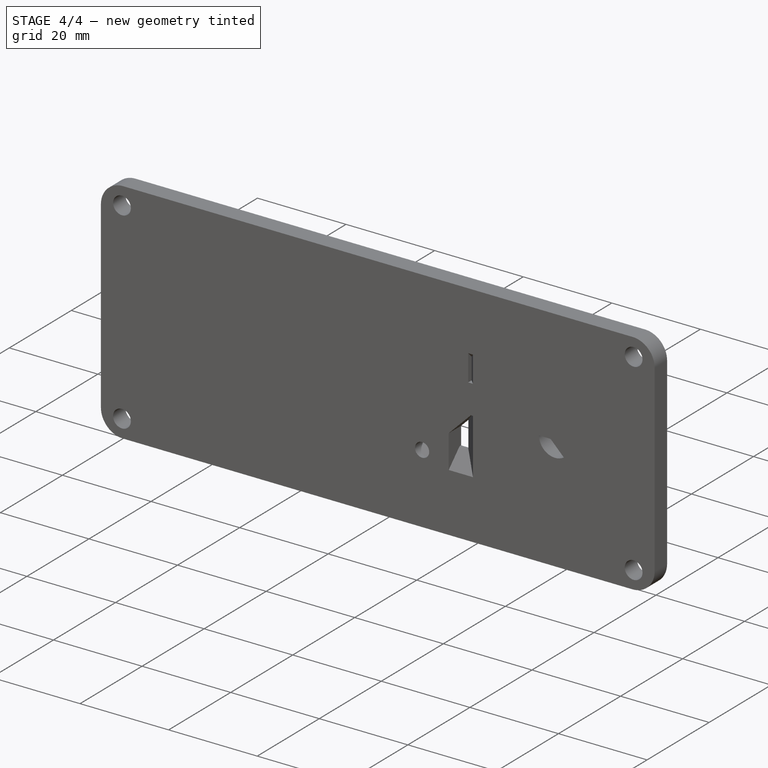
[diagram: stage 4 of 4 — iso view after this stage's code; geometry added in this stage tinted green]
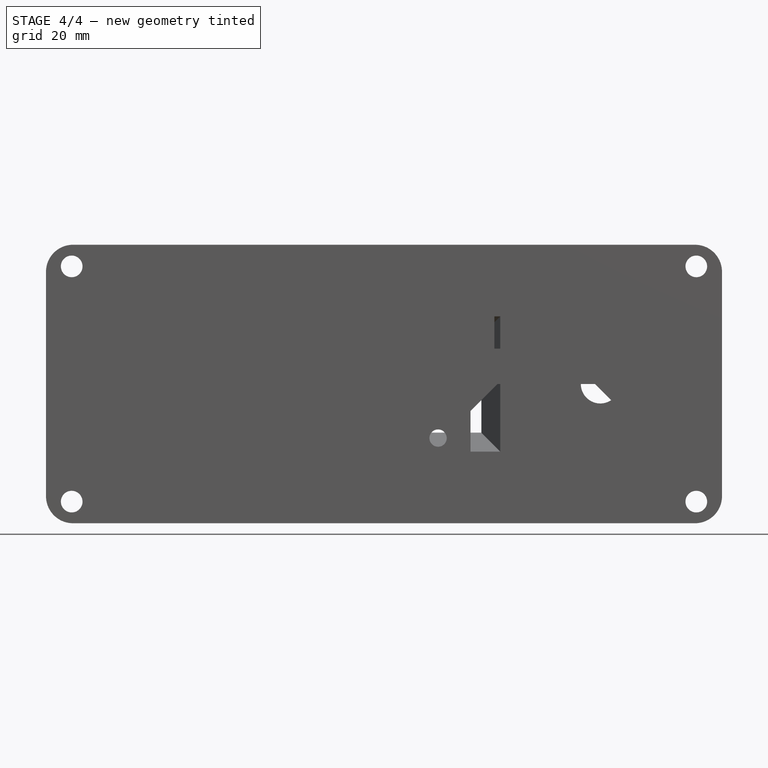
[diagram: stage 4 of 4 — front view after this stage's code; geometry added in this stage tinted green]
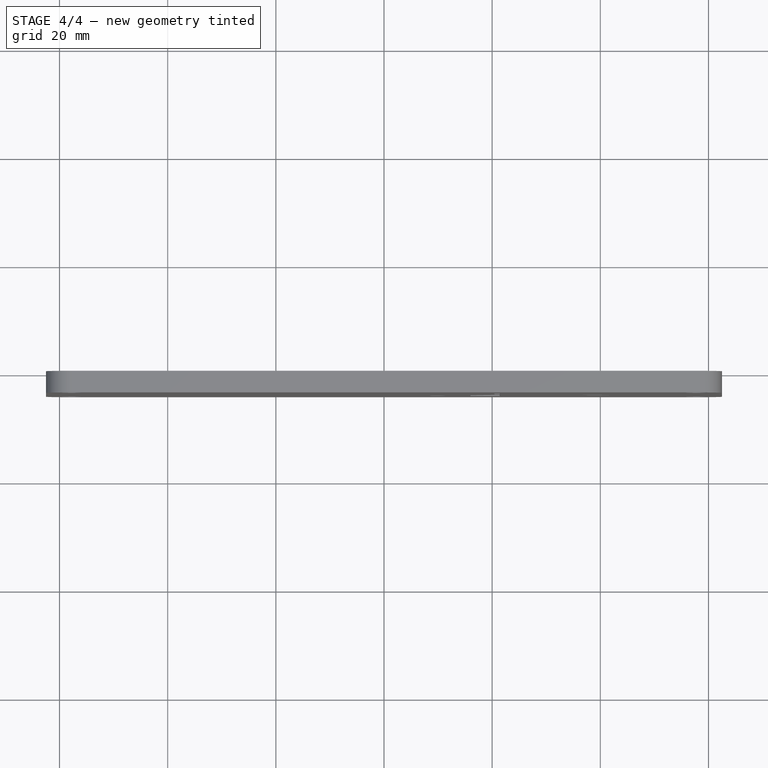
[diagram: stage 4 of 4 — top view after this stage's code; geometry added in this stage tinted green]
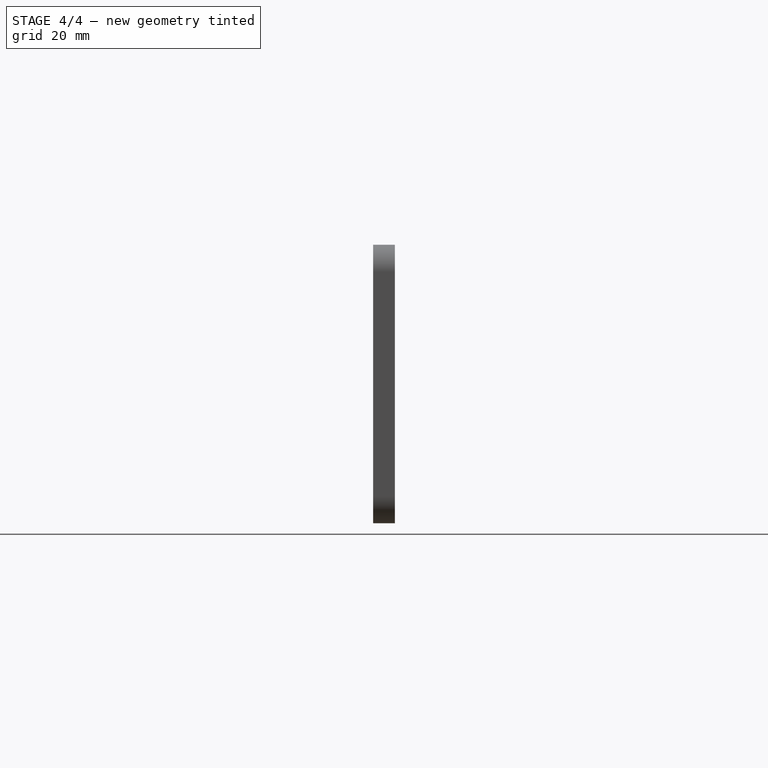
[diagram: stage 4 of 4 — right view after this stage's code; geometry added in this stage tinted green]
FEATURE [Sketcher::SketchObject] Sketch006
  AttachmentOffset = pos=(0,0,4) rot=(0,0,1;0rad)
  ExternalGeometry = -> [Pocket]
  FullyConstrained = true
  MapMode = 5
  Placement = pos=(0,-4,-9e-16) rot=(1,0,0;1.5708rad)
  Support = -> [XZ_Plane001]
  expr: Constraints[7] = .Constraints.TextOffset
  sketch-geometry (2):
    g0: LineSegment StartX=-41.5 StartY=-16.88 StartZ=0 EndX=-21.5 EndY=-16.88 EndZ=0
    g1: LineSegment StartX=-41.5 StartY=13.12 StartZ=0 EndX=-21.5 EndY=13.12 EndZ=0
  constraints (8):
    c: Horizontal(g0)
    c: DistanceX(g-3,g0) = 6
    c: DistanceX(g0,g0) = 20
    c: DistanceY(g0,g-3) = 1.88  'TextOffset'
    c: Horizontal(g1)
    c: Equal(g1,g0)
    c: Vertical(g1,g0)
    c: DistanceY(g1,g-4) = 1.88
FEATURE [Part::Part2DObjectPython] ShapeString  # Draft 2D object (typed FeaturePython)
  AttachmentOffset = pos=(0,0,0) rot=(0,1,0;1.5708rad)
  FontFile = <path>
  MakeFace = true
  MapMode = 7
  Placement = pos=(-41.5,-4,-16.88) rot=(1,0,0;1.5708rad)
  Size = 4
  String = Stand
  Support = -> [Sketch006]
  Tracking = 0
FEATURE [PartDesign::Pocket] Pocket001
  BaseFeature = -> Pocket
  Direction = (2e-16,1,0)
  Length = 1
  Length2 = 5
  Placement = pos=(0,0,0) rot=(1,0,0;1.5708rad)
  Profile = -> ShapeString
  ReferenceAxis = -> ShapeString [N_Axis]
  Refine = true
  Type = 0
FEATURE [Part::Part2DObjectPython] ShapeString001  # Draft 2D object (typed FeaturePython)
  AttachmentOffset = pos=(0,0,0) rot=(0,1,0;1.5708rad)
  FontFile = <path>
  MakeFace = true
  MapMode = 1
  Placement = pos=(-41.5,-4,13.12) rot=(1,0,0;1.5708rad)
  Size = 4
  String = ST-link
  Support = -> [Sketch006]
  Tracking = 0
FEATURE [PartDesign::Pocket] Pocket002
  BaseFeature = -> Pocket001
  Direction = (0,1,-2e-16)
  Length = 1
  Length2 = 5
  Placement = pos=(0,0,0) rot=(1,0,0;1.5708rad)
  Profile = -> ShapeString001
  ReferenceAxis = -> ShapeString001 [N_Axis]
  Refine = true
  Type = 0
FEATURE [PartDesign::CoordinateSystem] LCS_PCBA_Mount
  AttacherType = Attacher::AttachEngine3D
  MapMode = 11
  Placement = pos=(40,0,0) rot=(0.57735,-0.57735,0.57735;2.0944rad)
  Support = -> [Fillet]
FEATURE [PartDesign::CoordinateSystem] LCS_Front_Hole_1_Top
  AttacherType = Attacher::AttachEngine3D
  MapMode = 11
  Placement = pos=(-57.75,-4,21.75) rot=(0.57735,-0.57735,0.57735;2.0944rad)
  Support = -> [Fillet]
FEATURE [PartDesign::CoordinateSystem] LCS_Front_Hole_2_Top
  AttacherType = Attacher::AttachEngine3D
  MapMode = 11
  Placement = pos=(57.75,-4,21.75) rot=(0.57735,-0.57735,0.57735;2.0944rad)
  Support = -> [Fillet]
FEATURE [PartDesign::CoordinateSystem] LCS_Front_Hole_3_Top
  AttacherType = Attacher::AttachEngine3D
  MapMode = 11
  Placement = pos=(57.75,-4,-21.75) rot=(0.57735,-0.57735,0.57735;2.0944rad)
  Support = -> [Fillet]
FEATURE [PartDesign::CoordinateSystem] LCS_Front_Hole_4_Top
  AttacherType = Attacher::AttachEngine3D
  MapMode = 11
  Placement = pos=(-57.75,-4,-21.75) rot=(0.57735,-0.57735,0.57735;2.0944rad)
  Support = -> [Fillet]
FEATURE [PartDesign::CoordinateSystem] LCS_Front_Hole_1_Bottom
  AttacherType = Attacher::AttachEngine3D
  MapMode = 11
  Placement = pos=(-57.75,0,21.75) rot=(0.57735,-0.57735,0.57735;2.0944rad)
  Support = -> [Fillet]
FEATURE [PartDesign::CoordinateSystem] LCS_Rear_Hole_1_Bottom
  AttacherType = Attacher::AttachEngine3D
  MapMode = 11
  Placement = pos=(-57.75,0,21.75) rot=(0.57735,-0.57735,0.57735;2.0944rad)
  Support = -> [Pocket]
FEATURE [PartDesign::CoordinateSystem] LCS_Rear_Hole_1_Top
  AttacherType = Attacher::AttachEngine3D
  MapMode = 11
  Placement = pos=(-57.75,-4,21.75) rot=(0.57735,-0.57735,0.57735;2.0944rad)
  Support = -> [Pocket002]
FEATURE [PartDesign::CoordinateSystem] LCS_Rear_Hole_2_Top
  AttacherType = Attacher::AttachEngine3D
  MapMode = 11
  Placement = pos=(57.75,-4,21.75) rot=(0.57735,-0.57735,0.57735;2.0944rad)
  Support = -> [Pocket]
FEATURE [PartDesign::CoordinateSystem] LCS_Rear_Hole_3_Top
  AttacherType = Attacher::AttachEngine3D
  MapMode = 11
  Placement = pos=(57.75,-4,-21.75) rot=(0.57735,-0.57735,0.57735;2.0944rad)
  Support = -> [Pocket]
FEATURE [PartDesign::CoordinateSystem] LCS_Rear_Hole_4_Top
  AttacherType = Attacher::AttachEngine3D
  MapMode = 11
  Placement = pos=(-57.75,-4,-21.75) rot=(0.57735,-0.57735,0.57735;2.0944rad)
  Support = -> [Pocket]
FEATURE [PartDesign::CoordinateSystem] LCS_Rear_Holder_Connector
  AttacherType = Attacher::AttachEngine3D
  MapMode = 11
  Placement = pos=(-47.5,-2,-15) rot=(0.57735,-0.57735,0.57735;2.0944rad)
  Support = -> [Pocket]
FEATURE [PartDesign::CoordinateSystem] LCS_Rear_STlink_Connector
  AttacherType = Attacher::AttachEngine3D
  MapMode = 11
  Placement = pos=(-47.5,-2,15) rot=(0.57735,-0.57735,0.57735;2.0944rad)
  Support = -> [Pocket]
FEATURE [PartDesign::CoordinateSystem] LCS_Rear_IDC_Connector  label="LCS_Rear_IEC_Connector"
  AttacherType = Attacher::AttachEngine3D
  MapMode = 11
  Placement = pos=(10,-4,-10) rot=(0.57735,-0.57735,0.57735;2.0944rad)
  Support = -> [Pocket]
FEATURE [PartDesign::CoordinateSystem] LCS_Rear_Switch
  AttacherType = Attacher::AttachEngine3D
  MapMode = 45
  Placement = pos=(30,-4,13) rot=(-0.57735,-0.57735,-0.57735;2.0944rad)
  Support = -> [Pocket]
FEATURE [PartDesign::Body] Body001  label="Rear_Panel"
  Group = -> [Sketch003,Pad001,Sketch004,Hole001,Sketch005,Pocket,LCS_Rear_Hole_1_Bottom,LCS_Rear_Hole_1_Top,LCS_Rear_Hole_2_Top,LCS_Rear_Hole_3_Top,LCS_Rear_Hole_4_Top,LCS_Rear_Switch,LCS_Rear_IDC_Connector,LCS_Rear_STlink_Connector,LCS_Rear_Holder_Connector,Sketch006,ShapeString,Pocket001,ShapeString001,Pocket002]
  Origin = -> Origin001
  Placement = pos=(0,0,-70) rot=(0,0,1;0rad)
  Tip = -> Pocket002
FEATURE [PartDesign::CoordinateSystem] LCS_Front_Connector_Hole_1
  AttacherType = Attacher::AttachEngine3D
  MapMode = 11
  Placement = pos=(-47.25,-4,7.25) rot=(0.57735,-0.57735,0.57735;2.0944rad)
  Support = -> [Fillet]
FEATURE [PartDesign::CoordinateSystem] LCS_Front_Connector_Hole_2
  AttacherType = Attacher::AttachEngine3D
  MapMode = 11
  Placement = pos=(-32.75,-4,7.25) rot=(0.57735,-0.57735,0.57735;2.0944rad)
  Support = -> [Fillet]
FEATURE [PartDesign::CoordinateSystem] LCS_Front_Connector_Hole_3
  AttacherType = Attacher::AttachEngine3D
  MapMode = 11
  Placement = pos=(-32.75,-4,-7.25) rot=(0.57735,-0.57735,0.57735;2.0944rad)
  Support = -> [Fillet]
FEATURE [PartDesign::CoordinateSystem] LCS_Front_Connector_Hole_4
  AttacherType = Attacher::AttachEngine3D
  MapMode = 11
  Placement = pos=(-47.25,-4,-7.25) rot=(0.57735,-0.57735,0.57735;2.0944rad)
  Support = -> [Fillet]
FEATURE [PartDesign::Body] Body  label="Front_Panel"
  Group = -> [Sketch001,Sketch,Pad,Sketch002,Hole,Chamfer,Fillet,LCS_PCBA_Mount,LCS_Front_Hole_1_Bottom,LCS_Front_Hole_1_Top,LCS_Front_Hole_2_Top,LCS_Front_Hole_3_Top,LCS_Front_Hole_4_Top,LCS_Front_Connector_Hole_1,LCS_Front_Connector_Hole_2,LCS_Front_Connector_Hole_3,LCS_Front_Connector_Hole_4]
  Origin = -> Origin
  Tip = -> Fillet
note: 2 file-system paths scrubbed to <path> (originals preserved in the JSON sidecar)
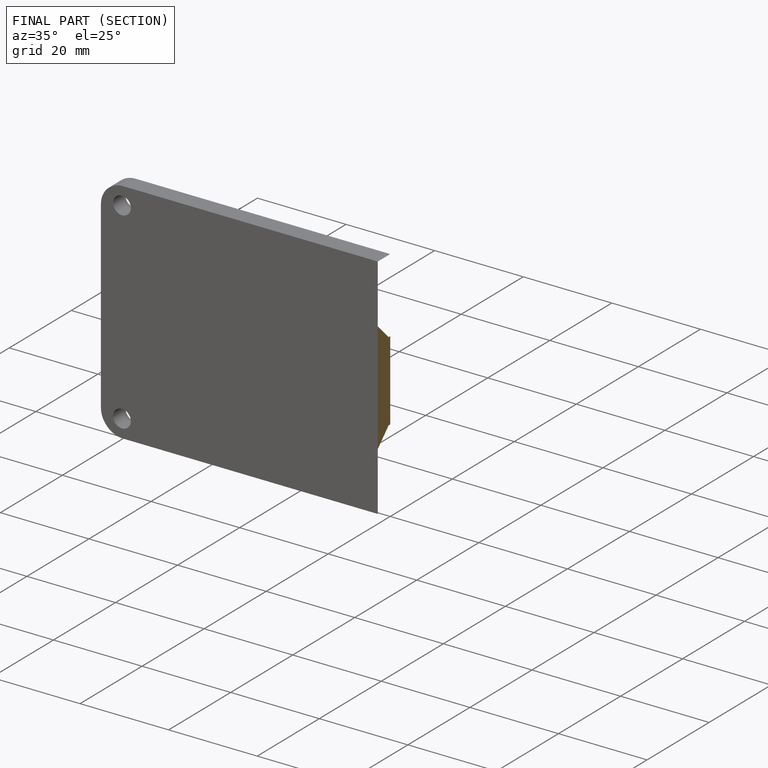
[diagram: finished part — half-section view (interior)]
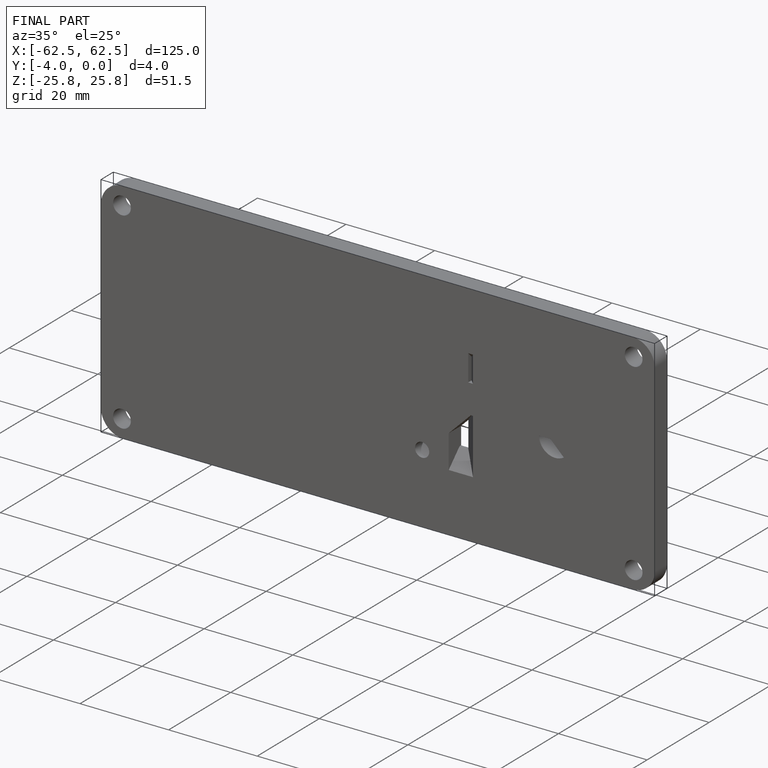
[diagram: finished part — iso view with bounding-box wireframe]
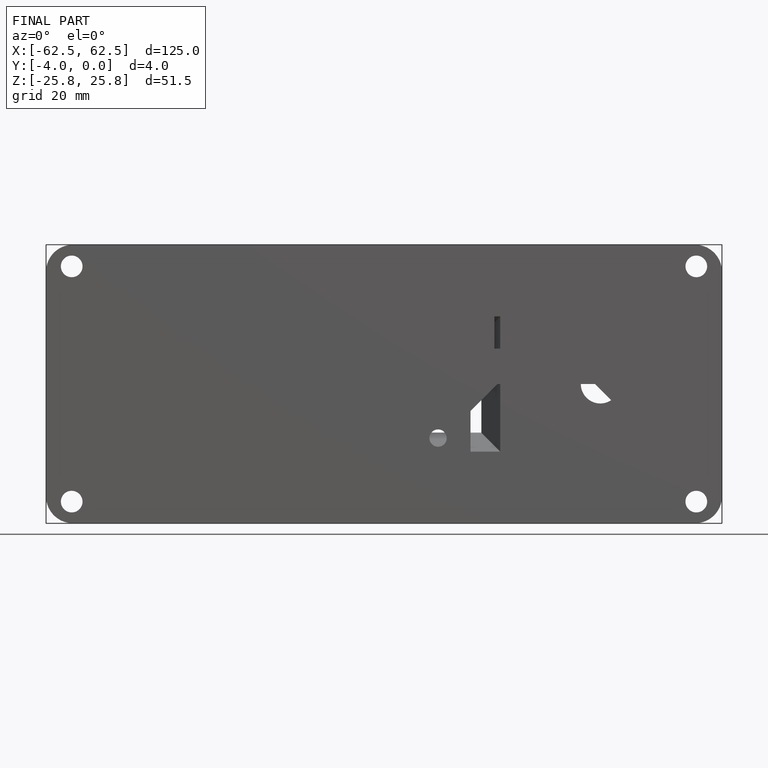
[diagram: finished part — front view with bounding-box wireframe]
